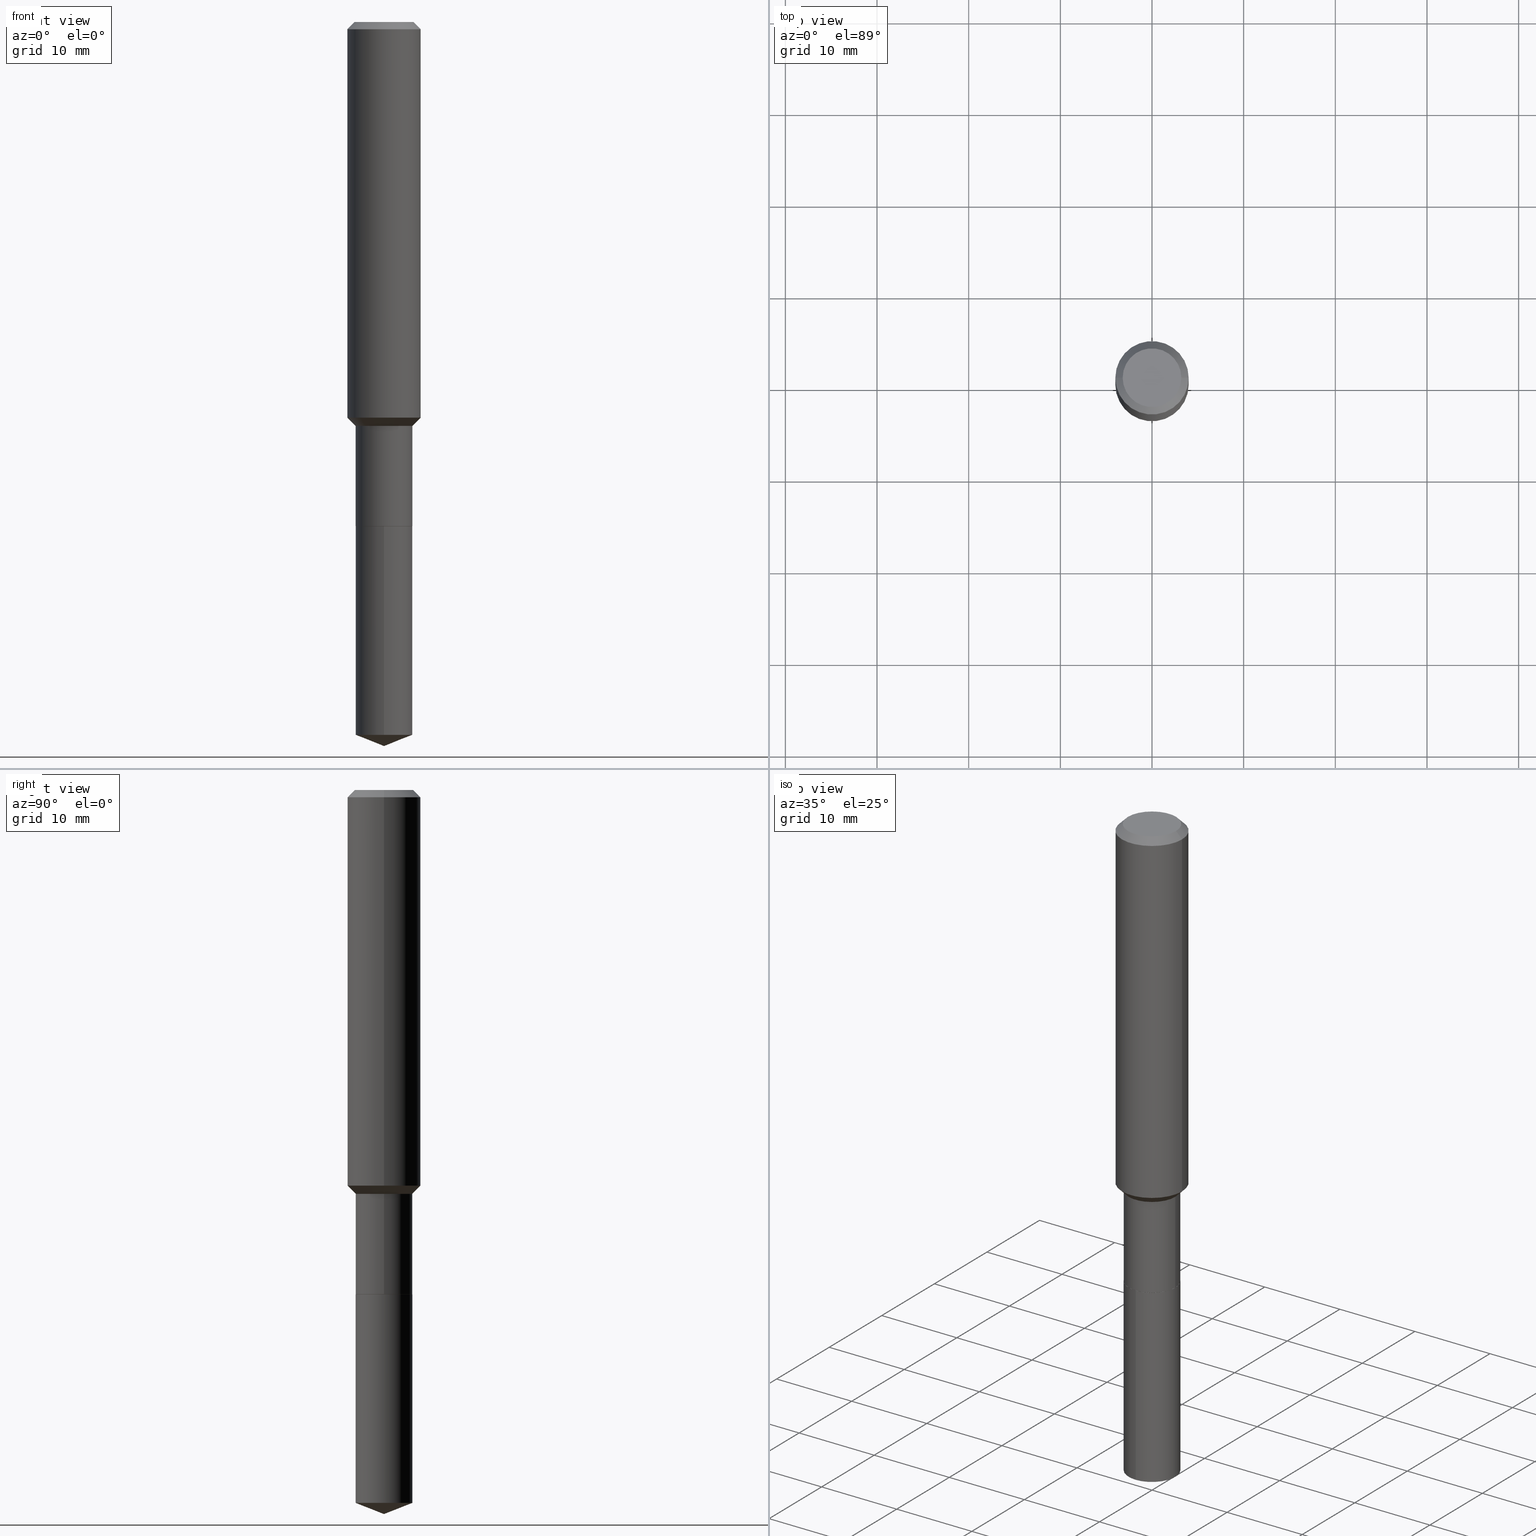
[diagram: canonical four-view strip — front | top / right | iso, engineering-drawing reading convention]
A machine part, canonical four-view strip (front | top / right | iso — engineering-drawing reading convention). The complete STEP part file that produces these views, byte-faithful:
ISO-10303-21;
HEADER;
FILE_DESCRIPTION (( 'STEP AP203' ),
    '1' );
FILE_NAME ('66432.STEP',
    '2024-04-24T22:39:59',
    ( '' ),
    ( '' ),
    'SwSTEP 2.0',
    'SolidWorks 2023',
    '' );
FILE_SCHEMA (( 'CONFIG_CONTROL_DESIGN' ));
ENDSEC;

DATA;
#1 = EDGE_LOOP ( 'NONE', ( #115, #394, #313, #15 ) ) ;
#2 = ORIENTED_EDGE ( 'NONE', *, *, #53, .T. ) ;
#3 = FACE_OUTER_BOUND ( 'NONE', #159, .T. ) ;
#4 = CIRCLE ( 'NONE', #80, 0.1220499999999999780 ) ;
#5 = DATE_AND_TIME ( #352, #487 ) ;
#6 = LINE ( 'NONE', #234, #272 ) ;
#7 = ORIENTED_EDGE ( 'NONE', *, *, #216, .F. ) ;
#8 = DATE_AND_TIME ( #277, #341 ) ;
#9 = DIRECTION ( 'NONE',  ( -2.438088387897960049E-29, 3.491481338843145188E-15, 1.000000000000000000 ) ) ;
#10 = PLANE ( 'NONE',  #392 ) ;
#11 = DIRECTION ( 'NONE',  ( -2.445321399674212677E-29, 3.491692433356646244E-15, 1.000000000000000000 ) ) ;
#12 = AXIS2_PLACEMENT_3D ( 'NONE', #147, #479, #375 ) ;
#13 = EDGE_CURVE ( 'NONE', #233, #73, #265, .T. ) ;
#14 = DIRECTION ( 'NONE',  ( -6.497071151882123780E-15, -0.9304175679820252398, 0.3665012267242951371 ) ) ;
#15 = ORIENTED_EDGE ( 'NONE', *, *, #71, .F. ) ;
#16 = EDGE_LOOP ( 'NONE', ( #489, #339, #203, #355 ) ) ;
#17 = AXIS2_PLACEMENT_3D ( 'NONE', #370, #217, #64 ) ;
#18 = LOCAL_TIME ( 18, 39, 59.00000000000000000, #20 ) ;
#19 = AXIS2_PLACEMENT_3D ( 'NONE', #98, #249, #205 ) ;
#20 = COORDINATED_UNIVERSAL_TIME_OFFSET ( 5, 0, .BEHIND. ) ;
#21 = CARTESIAN_POINT ( 'NONE',  ( 7.703226739483228723E-31, -1.099816621735597661E-16, -0.03150000000000019451 ) ) ;
#22 = EDGE_CURVE ( 'NONE', #347, #308, #248, .T. ) ;
#23 = DIRECTION ( 'NONE',  ( -2.445321399674212677E-29, 3.491692433356646244E-15, 1.000000000000000000 ) ) ;
#24 = CARTESIAN_POINT ( 'NONE',  ( 5.295173606032675561E-29, -7.560104542997063911E-15, -2.165299999999999780 ) ) ;
#25 = CARTESIAN_POINT ( 'NONE',  ( 5.293950871629583880E-29, -7.558358802327641618E-15, -2.164800000000000058 ) ) ;
#26 = PERSON_AND_ORGANIZATION_ROLE ( 'creator' ) ;
#27 = CARTESIAN_POINT ( 'NONE',  ( -0.1260000000000000009, 9.348441284752484904E-16, 3.860086710906114178E-18 ) ) ;
#28 = AXIS2_PLACEMENT_3D ( 'NONE', #469, #56, #126 ) ;
#29 = CALENDAR_DATE ( 2024, 24, 4 ) ;
#30 = FACE_OUTER_BOUND ( 'NONE', #354, .T. ) ;
#31 = COORDINATED_UNIVERSAL_TIME_OFFSET ( 5, 0, .BEHIND. ) ;
#32 = ORIENTED_EDGE ( 'NONE', *, *, #371, .T. ) ;
#33 = AXIS2_PLACEMENT_3D ( 'NONE', #120, #11, #125 ) ;
#34 = VERTEX_POINT ( 'NONE', #114 ) ;
#35 =( GEOMETRIC_REPRESENTATION_CONTEXT ( 3 ) GLOBAL_UNCERTAINTY_ASSIGNED_CONTEXT ( ( #334 ) ) GLOBAL_UNIT_ASSIGNED_CONTEXT ( ( #326, #434, #131 ) ) REPRESENTATION_CONTEXT ( 'NONE', 'WORKASPACE' ) );
#36 = CONICAL_SURFACE ( 'NONE', #438, 0.1575000000000000011, 0.7853981633974449483 ) ;
#37 = EDGE_LOOP ( 'NONE', ( #257, #263, #322, #113 ) ) ;
#38 = ADVANCED_FACE ( 'NONE', ( #424 ), #36, .T. ) ;
#39 = PERSON_AND_ORGANIZATION ( #305, #420 ) ;
#40 = CARTESIAN_POINT ( 'NONE',  ( 7.703226739483228723E-31, -1.099816621735597661E-16, -0.03150000000000019451 ) ) ;
#41 = DESIGN_CONTEXT ( 'detailed design', #279, 'design' ) ;
#42 = VERTEX_POINT ( 'NONE', #191 ) ;
#43 = CIRCLE ( 'NONE', #270, 0.1260000000000000009 ) ;
#44 = ADVANCED_FACE ( 'NONE', ( #77 ), #274, .T. ) ;
#45 = ORIENTED_EDGE ( 'NONE', *, *, #140, .T. ) ;
#46 = LOCAL_TIME ( 18, 39, 59.00000000000000000, #94 ) ;
#47 = VECTOR ( 'NONE', #152, 39.37007874015748143 ) ;
#48 = CARTESIAN_POINT ( 'NONE',  ( 5.295173606032675561E-29, -7.560104542997063911E-15, -2.165299999999999780 ) ) ;
#49 = CARTESIAN_POINT ( 'NONE',  ( 5.295173606032675561E-29, -7.560104542997063911E-15, -2.165299999999999780 ) ) ;
#50 = ORIENTED_EDGE ( 'NONE', *, *, #260, .F. ) ;
#51 =( LENGTH_UNIT ( ) NAMED_UNIT ( * ) SI_UNIT ( $, .METRE. ) );
#52 = DIRECTION ( 'NONE',  ( -6.982962677686265922E-15, -1.000000000000000000, 4.476604659834925490E-15 ) ) ;
#53 = EDGE_CURVE ( 'NONE', #190, #42, #398, .T. ) ;
#54 = CARTESIAN_POINT ( 'NONE',  ( 0.000000000000000000, 0.000000000000000000, 0.000000000000000000 ) ) ;
#55 = CC_DESIGN_PERSON_AND_ORGANIZATION_ASSIGNMENT ( #254, #154, ( #282 ) ) ;
#56 = DIRECTION ( 'NONE',  ( 0.000000000000000000, 0.000000000000000000, 1.000000000000000000 ) ) ;
#57 = ADVANCED_FACE ( 'NONE', ( #357 ), #10, .F. ) ;
#58 = LOCAL_TIME ( 18, 39, 59.00000000000000000, #31 ) ;
#59 = APPROVAL_STATUS ( 'not_yet_approved' ) ;
#60 = DIRECTION ( 'NONE',  ( -2.445468806185136597E-29, 3.491481338843145583E-15, 1.000000000000000000 ) ) ;
#61 = APPROVAL ( #346, 'UNSPECIFIED' ) ;
#62 = AXIS2_PLACEMENT_3D ( 'NONE', #49, #464, #52 ) ;
#63 = CIRCLE ( 'NONE', #247, 0.1215500000000000053 ) ;
#64 = DIRECTION ( 'NONE',  ( 1.000000000000000000, -6.982962677686266711E-15, 0.000000000000000000 ) ) ;
#65 = VECTOR ( 'NONE', #303, 39.37007874015748143 ) ;
#66 = CIRCLE ( 'NONE', #33, 0.1220500000000000057 ) ;
#67 = DIRECTION ( 'NONE',  ( -2.445321399674212677E-29, 3.491692433356646244E-15, 1.000000000000000000 ) ) ;
#68 = DIRECTION ( 'NONE',  ( 1.000000000000000000, -6.982962677686266711E-15, 4.876176775795935793E-29 ) ) ;
#69 = ORIENTED_EDGE ( 'NONE', *, *, #242, .F. ) ;
#70 = CARTESIAN_POINT ( 'NONE',  ( -0.1220499999999999502, -5.940822053615047978E-15, -1.735000000000000098 ) ) ;
#71 = EDGE_CURVE ( 'NONE', #347, #423, #468, .T. ) ;
#72 = DIRECTION ( 'NONE',  ( 0.7071067811866078578, -2.468850131082888544E-15, 0.7071067811864871766 ) ) ;
#73 = VERTEX_POINT ( 'NONE', #359 ) ;
#74 = CALENDAR_DATE ( 2024, 24, 4 ) ;
#75 = VERTEX_POINT ( 'NONE', #124 ) ;
#76 = ORIENTED_EDGE ( 'NONE', *, *, #260, .T. ) ;
#77 = FACE_OUTER_BOUND ( 'NONE', #1, .T. ) ;
#78 = EDGE_CURVE ( 'NONE', #446, #347, #6, .T. ) ;
#79 = DIRECTION ( 'NONE',  ( 0.7071067811865496822, -2.468850131082279149E-15, 0.7071067811865453523 ) ) ;
#80 = AXIS2_PLACEMENT_3D ( 'NONE', #86, #399, #207 ) ;
#81 = ORIENTED_EDGE ( 'NONE', *, *, #378, .F. ) ;
#82 = DIRECTION ( 'NONE',  ( 1.000000000000000000, -6.982962677686266711E-15, 4.876176775795935793E-29 ) ) ;
#83 = ADVANCED_BREP_SHAPE_REPRESENTATION ( '66432', ( #118, #452, #28 ), #35 ) ;
#84 = LINE ( 'NONE', #236, #367 ) ;
#85 = CARTESIAN_POINT ( 'NONE',  ( 7.703226739483228723E-31, -1.099816621735597661E-16, -0.03150000000000019451 ) ) ;
#86 = CARTESIAN_POINT ( 'NONE',  ( 5.293950871629583880E-29, -7.558358802327641618E-15, -2.164800000000000058 ) ) ;
#87 = ORIENTED_EDGE ( 'NONE', *, *, #301, .T. ) ;
#88 = ORIENTED_EDGE ( 'NONE', *, *, #463, .F. ) ;
#89 = DIRECTION ( 'NONE',  ( -2.445468806185136597E-29, 3.491481338843145583E-15, 1.000000000000000000 ) ) ;
#90 = LINE ( 'NONE', #321, #255 ) ;
#91 = MECHANICAL_CONTEXT ( 'NONE', #296, 'mechanical' ) ;
#92 = COORDINATED_UNIVERSAL_TIME_OFFSET ( 5, 0, .BEHIND. ) ;
#93 = EDGE_CURVE ( 'NONE', #156, #116, #90, .T. ) ;
#94 = COORDINATED_UNIVERSAL_TIME_OFFSET ( 5, 0, .BEHIND. ) ;
#95 = DIRECTION ( 'NONE',  ( 1.000000000000000000, -6.982962677686265922E-15, 0.000000000000000000 ) ) ;
#96 = AXIS2_PLACEMENT_3D ( 'NONE', #24, #473, #292 ) ;
#97 = FACE_OUTER_BOUND ( 'NONE', #209, .T. ) ;
#98 = CARTESIAN_POINT ( 'NONE',  ( 4.242888378731212847E-29, -6.057720122892857986E-15, -1.735000000000000098 ) ) ;
#99 = APPROVAL ( #59, 'UNSPECIFIED' ) ;
#100 = CARTESIAN_POINT ( 'NONE',  ( -0.1575000000000001954, -4.814842300608708286E-15, -1.699550000000000116 ) ) ;
#101 = APPROVAL_STATUS ( 'not_yet_approved' ) ;
#102 = CARTESIAN_POINT ( 'NONE',  ( -8.866673825358101725E-28, 1.266088013143874858E-13, 36.25987874015748247 ) ) ;
#103 = PLANE ( 'NONE',  #474 ) ;
#104 = SECURITY_CLASSIFICATION_LEVEL ( 'unclassified' ) ;
#105 = ORIENTED_EDGE ( 'NONE', *, *, #140, .F. ) ;
#106 = CIRCLE ( 'NONE', #232, 0.1220499999999999502 ) ;
#107 = DIRECTION ( 'NONE',  ( 2.445468806185136597E-29, -3.491481338843145583E-15, -1.000000000000000000 ) ) ;
#108 = DIRECTION ( 'NONE',  ( -2.445468806185136597E-29, 3.491481338843145583E-15, 1.000000000000000000 ) ) ;
#109 = PERSON_AND_ORGANIZATION ( #305, #420 ) ;
#110 = EDGE_CURVE ( 'NONE', #264, #423, #430, .T. ) ;
#111 = DIRECTION ( 'NONE',  ( -2.445468806185136877E-29, 3.491481338843145188E-15, 1.000000000000000000 ) ) ;
#112 = DATE_AND_TIME ( #454, #58 ) ;
#113 = ORIENTED_EDGE ( 'NONE', *, *, #343, .F. ) ;
#114 = CARTESIAN_POINT ( 'NONE',  ( -8.522705948115558556E-16, -0.1220500000000075691, -2.165299999999999336 ) ) ;
#115 = ORIENTED_EDGE ( 'NONE', *, *, #22, .T. ) ;
#116 = VERTEX_POINT ( 'NONE', #162 ) ;
#117 = FACE_OUTER_BOUND ( 'NONE', #417, .T. ) ;
#118 = MANIFOLD_SOLID_BREP ( 'Body-Move/Copy2[1]', #488 ) ;
#119 = DIRECTION ( 'NONE',  ( -2.445468806185136597E-29, 3.491481338843145583E-15, 1.000000000000000000 ) ) ;
#120 = CARTESIAN_POINT ( 'NONE',  ( 5.295173606032675561E-29, -7.560104542997063911E-15, -2.165299999999999780 ) ) ;
#121 = AXIS2_PLACEMENT_3D ( 'NONE', #432, #239, #130 ) ;
#122 = ORIENTED_EDGE ( 'NONE', *, *, #284, .F. ) ;
#123 = CARTESIAN_POINT ( 'NONE',  ( 5.295173606032675561E-29, -7.560104542997063911E-15, -2.165299999999999780 ) ) ;
#124 = CARTESIAN_POINT ( 'NONE',  ( -0.1220500000000000057, -5.940822053615047978E-15, -2.164800000000000058 ) ) ;
#125 = DIRECTION ( 'NONE',  ( -6.982962677686265922E-15, -1.000000000000000000, 4.476604659834925490E-15 ) ) ;
#126 = DIRECTION ( 'NONE',  ( 1.000000000000000000, 0.000000000000000000, 0.000000000000000000 ) ) ;
#127 = EDGE_CURVE ( 'NONE', #423, #42, #449, .T. ) ;
#128 = VERTEX_POINT ( 'NONE', #165 ) ;
#129 = CYLINDRICAL_SURFACE ( 'NONE', #121, 0.1220500000000000057 ) ;
#130 = DIRECTION ( 'NONE',  ( -6.982962677686265922E-15, -1.000000000000000000, 4.476604659834925490E-15 ) ) ;
#131 =( NAMED_UNIT ( * ) SI_UNIT ( $, .STERADIAN. ) SOLID_ANGLE_UNIT ( ) );
#132 = AXIS2_PLACEMENT_3D ( 'NONE', #482, #23, #139 ) ;
#133 = CARTESIAN_POINT ( 'NONE',  ( 0.000000000000000000, 0.000000000000000000, 0.000000000000000000 ) ) ;
#134 = LINE ( 'NONE', #476, #47 ) ;
#135 = AXIS2_PLACEMENT_3D ( 'NONE', #48, #405, #365 ) ;
#136 = ADVANCED_FACE ( 'NONE', ( #472 ), #129, .T. ) ;
#137 = CARTESIAN_POINT ( 'NONE',  ( -9.439721640706201686E-47, 1.347742071746726764E-32, 3.860086710912459732E-18 ) ) ;
#138 = FACE_OUTER_BOUND ( 'NONE', #238, .T. ) ;
#139 = DIRECTION ( 'NONE',  ( -6.982962677686265922E-15, -1.000000000000000000, 4.476604659834925490E-15 ) ) ;
#140 = EDGE_CURVE ( 'NONE', #156, #233, #230, .T. ) ;
#141 = LINE ( 'NONE', #295, #164 ) ;
#142 = PERSON_AND_ORGANIZATION ( #305, #420 ) ;
#143 = CARTESIAN_POINT ( 'NONE',  ( 8.672174089952771606E-16, 0.1220499999999893059, -3.062123226451197500 ) ) ;
#144 = EDGE_CURVE ( 'NONE', #34, #73, #300, .T. ) ;
#145 = CARTESIAN_POINT ( 'NONE',  ( 8.672174089952550725E-16, 0.1220499999999924423, -2.165300000000000669 ) ) ;
#146 = CYLINDRICAL_SURFACE ( 'NONE', #221, 0.1575000000000000844 ) ;
#147 = CARTESIAN_POINT ( 'NONE',  ( 5.295173606032675561E-29, -7.560104542997063911E-15, -2.165299999999999780 ) ) ;
#148 = CIRCLE ( 'NONE', #96, 0.1215500000000000053 ) ;
#149 = ADVANCED_FACE ( 'NONE', ( #202 ), #340, .T. ) ;
#150 = EDGE_LOOP ( 'NONE', ( #363, #461, #226, #50 ) ) ;
#151 = CIRCLE ( 'NONE', #132, 0.1220500000000000057 ) ;
#152 = DIRECTION ( 'NONE',  ( -2.445321399674212397E-29, 3.491692433356646639E-15, 1.000000000000000000 ) ) ;
#153 = ORIENTED_EDGE ( 'NONE', *, *, #110, .T. ) ;
#154 = PERSON_AND_ORGANIZATION_ROLE ( 'classification_officer' ) ;
#155 = ORIENTED_EDGE ( 'NONE', *, *, #276, .F. ) ;
#156 = VERTEX_POINT ( 'NONE', #409 ) ;
#157 = DIRECTION ( 'NONE',  ( 2.445468806185136597E-29, -3.491481338843145583E-15, -1.000000000000000000 ) ) ;
#158 = ORIENTED_EDGE ( 'NONE', *, *, #127, .T. ) ;
#159 = EDGE_LOOP ( 'NONE', ( #466, #200, #2, #429 ) ) ;
#160 = DIRECTION ( 'NONE',  ( -2.445468806185136597E-29, 3.491481338843145583E-15, 1.000000000000000000 ) ) ;
#161 = APPROVAL_ROLE ( '' ) ;
#162 = CARTESIAN_POINT ( 'NONE',  ( -8.522705948115337675E-16, -0.1220500000000106916, -3.062123226451196611 ) ) ;
#163 = EDGE_CURVE ( 'NONE', #75, #348, #141, .T. ) ;
#164 = VECTOR ( 'NONE', #440, 39.37007874015748143 ) ;
#165 = CARTESIAN_POINT ( 'NONE',  ( -0.1215500000000000053, -6.693790620506550601E-15, -2.165299999999999780 ) ) ;
#166 = ORIENTED_EDGE ( 'NONE', *, *, #397, .F. ) ;
#167 = CARTESIAN_POINT ( 'NONE',  ( 0.1220499999999999502, -6.909990717704466794E-15, -1.735000000000000098 ) ) ;
#168 = CARTESIAN_POINT ( 'NONE',  ( -9.439721640706201686E-47, 1.347742071746726764E-32, 3.860086710912459732E-18 ) ) ;
#169 = PERSON_AND_ORGANIZATION ( #305, #420 ) ;
#170 = CARTESIAN_POINT ( 'NONE',  ( 0.1575000000000000011, -1.190510096822576026E-15, -0.03150000000000019451 ) ) ;
#171 = EDGE_LOOP ( 'NONE', ( #87, #377, #227, #422 ) ) ;
#172 = DIRECTION ( 'NONE',  ( -2.445468806185136877E-29, 3.491481338843145188E-15, 1.000000000000000000 ) ) ;
#173 = PRODUCT_DEFINITION ( 'UNKNOWN', '', #407, #41 ) ;
#174 = CONICAL_SURFACE ( 'NONE', #19, 0.1220499999999999502, 0.7853981633974513876 ) ;
#175 = CC_DESIGN_SECURITY_CLASSIFICATION ( #282, ( #407 ) ) ;
#176 = CIRCLE ( 'NONE', #253, 0.1575000000000001954 ) ;
#177 = CARTESIAN_POINT ( 'NONE',  ( -0.1215500000000000053, -6.696439847680661802E-15, -2.165299999999999780 ) ) ;
#178 = PERSON_AND_ORGANIZATION ( #305, #420 ) ;
#179 = CC_DESIGN_APPROVAL ( #485, ( #173 ) ) ;
#180 = DIRECTION ( 'NONE',  ( -1.000000000000000000, 6.982962677686265922E-15, -4.876176775795935793E-29 ) ) ;
#181 = PERSON_AND_ORGANIZATION_ROLE ( 'design_supplier' ) ;
#182 = DIMENSIONAL_EXPONENTS ( 1.000000000000000000, 0.000000000000000000, 0.000000000000000000, 0.000000000000000000, 0.000000000000000000, 0.000000000000000000, 0.000000000000000000 ) ;
#183 = EDGE_CURVE ( 'NONE', #348, #308, #456, .T. ) ;
#184 = ORIENTED_EDGE ( 'NONE', *, *, #144, .T. ) ;
#185 = EDGE_LOOP ( 'NONE', ( #228, #336, #302, #345 ) ) ;
#186 = CONICAL_SURFACE ( 'NONE', #135, 0.1215500000000000053, 0.7853981633975336552 ) ;
#187 = ORIENTED_EDGE ( 'NONE', *, *, #183, .F. ) ;
#188 = PRODUCT ( '66432', '66432', '', ( #91 ) ) ;
#189 = ADVANCED_FACE ( 'NONE', ( #30 ), #414, .F. ) ;
#190 = VERTEX_POINT ( 'NONE', #27 ) ;
#191 = CARTESIAN_POINT ( 'NONE',  ( -0.1575000000000000011, -1.902859576980055070E-15, -0.03150000000000019451 ) ) ;
#192 = ORIENTED_EDGE ( 'NONE', *, *, #284, .T. ) ;
#193 = DIRECTION ( 'NONE',  ( 1.000000000000000000, -6.982962677686265922E-15, 4.876281427513067258E-29 ) ) ;
#194 = AXIS2_PLACEMENT_3D ( 'NONE', #102, #218, #465 ) ;
#195 = COORDINATED_UNIVERSAL_TIME_OFFSET ( 5, 0, .BEHIND. ) ;
#196 = VECTOR ( 'NONE', #237, 39.37007874015748143 ) ;
#197 = ORIENTED_EDGE ( 'NONE', *, *, #53, .F. ) ;
#198 = CC_DESIGN_PERSON_AND_ORGANIZATION_ASSIGNMENT ( #178, #442, ( #188 ) ) ;
#199 = CARTESIAN_POINT ( 'NONE',  ( 5.295173606032675561E-29, -7.560104542997063911E-15, -2.165299999999999780 ) ) ;
#200 = ORIENTED_EDGE ( 'NONE', *, *, #371, .F. ) ;
#201 = ADVANCED_FACE ( 'NONE', ( #299 ), #481, .T. ) ;
#202 = FACE_OUTER_BOUND ( 'NONE', #307, .T. ) ;
#203 = ORIENTED_EDGE ( 'NONE', *, *, #22, .F. ) ;
#204 = CARTESIAN_POINT ( 'NONE',  ( 4.242888378731212847E-29, -6.057720122892857986E-15, -1.735000000000000098 ) ) ;
#205 = DIRECTION ( 'NONE',  ( 1.000000000000000000, -6.982962677686266711E-15, 0.000000000000000000 ) ) ;
#206 = CARTESIAN_POINT ( 'NONE',  ( 0.1575000000000000844, -1.099816621735587677E-15, 7.679978421878603638E-30 ) ) ;
#207 = DIRECTION ( 'NONE',  ( 1.000000000000000000, -6.982962677686265133E-15, 0.000000000000000000 ) ) ;
#208 = AXIS2_PLACEMENT_3D ( 'NONE', #403, #314, #213 ) ;
#209 = EDGE_LOOP ( 'NONE', ( #187, #396, #259, #269 ) ) ;
#210 = AXIS2_PLACEMENT_3D ( 'NONE', #54, #119, #268 ) ;
#211 = EDGE_LOOP ( 'NONE', ( #319, #45, #122 ) ) ;
#212 = EDGE_CURVE ( 'NONE', #390, #431, #379, .T. ) ;
#213 = DIRECTION ( 'NONE',  ( 1.000000000000000000, -6.982962677686266711E-15, 0.000000000000000000 ) ) ;
#214 = VECTOR ( 'NONE', #72, 39.37007874015748143 ) ;
#215 = CC_DESIGN_PERSON_AND_ORGANIZATION_ASSIGNMENT ( #408, #181, ( #407 ) ) ;
#216 = EDGE_CURVE ( 'NONE', #128, #75, #362, .T. ) ;
#217 = DIRECTION ( 'NONE',  ( -2.445468806185136597E-29, 3.491481338843145583E-15, 1.000000000000000000 ) ) ;
#218 = DIRECTION ( 'NONE',  ( -2.445321399674212677E-29, 3.491692433356646244E-15, 1.000000000000000000 ) ) ;
#219 = DATE_AND_TIME ( #29, #46 ) ;
#220 = DIRECTION ( 'NONE',  ( 1.000000000000000000, -6.982962677686265133E-15, 0.000000000000000000 ) ) ;
#221 = AXIS2_PLACEMENT_3D ( 'NONE', #450, #470, #433 ) ;
#222 = ADVANCED_FACE ( 'NONE', ( #293 ), #103, .F. ) ;
#223 = ORIENTED_EDGE ( 'NONE', *, *, #415, .F. ) ;
#224 = APPROVAL_DATE_TIME ( #112, #61 ) ;
#225 = DATE_AND_TIME ( #74, #18 ) ;
#226 = ORIENTED_EDGE ( 'NONE', *, *, #378, .T. ) ;
#227 = ORIENTED_EDGE ( 'NONE', *, *, #460, .F. ) ;
#228 = ORIENTED_EDGE ( 'NONE', *, *, #397, .T. ) ;
#229 = CIRCLE ( 'NONE', #208, 0.1220499999999999502 ) ;
#230 = LINE ( 'NONE', #315, #411 ) ;
#231 = AXIS2_PLACEMENT_3D ( 'NONE', #85, #471, #395 ) ;
#232 = AXIS2_PLACEMENT_3D ( 'NONE', #204, #273, #240 ) ;
#233 = VERTEX_POINT ( 'NONE', #143 ) ;
#234 = CARTESIAN_POINT ( 'NONE',  ( 0.1220499999999999502, -6.909990717704466794E-15, -1.735000000000000098 ) ) ;
#235 = LENGTH_MEASURE_WITH_UNIT ( LENGTH_MEASURE( 0.02539999999999999897 ), #51 );
#236 = CARTESIAN_POINT ( 'NONE',  ( -0.1575000000000000844, 1.119104808822158392E-15, -7.747322767151481189E-30 ) ) ;
#237 = DIRECTION ( 'NONE',  ( -0.7071067811865451302, 2.468850131082231817E-15, -0.7071067811865499042 ) ) ;
#238 = EDGE_LOOP ( 'NONE', ( #105, #490, #69 ) ) ;
#239 = DIRECTION ( 'NONE',  ( -2.445321399674212677E-29, 3.491692433356646244E-15, 1.000000000000000000 ) ) ;
#240 = DIRECTION ( 'NONE',  ( 1.000000000000000000, -6.982962677686266711E-15, 0.000000000000000000 ) ) ;
#241 = DIRECTION ( 'NONE',  ( 6.611014441532073689E-15, 0.9304175679820279043, 0.3665012267242886423 ) ) ;
#242 = EDGE_CURVE ( 'NONE', #233, #116, #297, .T. ) ;
#243 = DIRECTION ( 'NONE',  ( 1.000000000000000000, -6.982962677686265922E-15, 4.876281427513067258E-29 ) ) ;
#244 = APPROVAL_DATE_TIME ( #219, #99 ) ;
#245 = AXIS2_PLACEMENT_3D ( 'NONE', #381, #435, #369 ) ;
#246 = ADVANCED_FACE ( 'NONE', ( #337 ), #290, .T. ) ;
#247 = AXIS2_PLACEMENT_3D ( 'NONE', #123, #325, #317 ) ;
#248 = CIRCLE ( 'NONE', #412, 0.1575000000000001954 ) ;
#249 = DIRECTION ( 'NONE',  ( -2.445468806185136597E-29, 3.491481338843145583E-15, 1.000000000000000000 ) ) ;
#250 = DIRECTION ( 'NONE',  ( -0.7071067811866078578, 7.493145998870571886E-15, 0.7071067811864871766 ) ) ;
#251 = CARTESIAN_POINT ( 'NONE',  ( 4.156196509551949590E-29, -5.933947109430868256E-15, -1.699550000000000116 ) ) ;
#252 = FACE_OUTER_BOUND ( 'NONE', #459, .T. ) ;
#253 = AXIS2_PLACEMENT_3D ( 'NONE', #251, #60, #333 ) ;
#254 = PERSON_AND_ORGANIZATION ( #305, #420 ) ;
#255 = VECTOR ( 'NONE', #14, 39.37007874015748854 ) ;
#256 = VECTOR ( 'NONE', #111, 39.37007874015748143 ) ;
#257 = ORIENTED_EDGE ( 'NONE', *, *, #477, .F. ) ;
#258 = PERSON_AND_ORGANIZATION_ROLE ( 'creator' ) ;
#259 = ORIENTED_EDGE ( 'NONE', *, *, #78, .T. ) ;
#260 = EDGE_CURVE ( 'NONE', #73, #34, #66, .T. ) ;
#261 = PRODUCT_DEFINITION_SHAPE ( 'NONE', 'NONE',  #173 ) ;
#262 = EDGE_LOOP ( 'NONE', ( #223, #153, #158, #197 ) ) ;
#263 = ORIENTED_EDGE ( 'NONE', *, *, #310, .T. ) ;
#264 = VERTEX_POINT ( 'NONE', #275 ) ;
#265 = LINE ( 'NONE', #145, #65 ) ;
#266 = ORIENTED_EDGE ( 'NONE', *, *, #364, .T. ) ;
#267 = CARTESIAN_POINT ( 'NONE',  ( 0.1220499999999999780, -8.410629397139250426E-15, -2.164800000000000058 ) ) ;
#268 = DIRECTION ( 'NONE',  ( 1.000000000000000000, -6.982962677686267499E-15, 4.876176775795936353E-29 ) ) ;
#269 = ORIENTED_EDGE ( 'NONE', *, *, #310, .F. ) ;
#270 = AXIS2_PLACEMENT_3D ( 'NONE', #168, #285, #193 ) ;
#271 = CC_DESIGN_APPROVAL ( #99, ( #407 ) ) ;
#272 = VECTOR ( 'NONE', #79, 39.37007874015748143 ) ;
#273 = DIRECTION ( 'NONE',  ( -2.445468806185136597E-29, 3.491481338843145583E-15, 1.000000000000000000 ) ) ;
#274 = CYLINDRICAL_SURFACE ( 'NONE', #210, 0.1575000000000000844 ) ;
#275 = CARTESIAN_POINT ( 'NONE',  ( 0.1260000000000000009, -1.027466422270894443E-15, 3.860086710919128072E-18 ) ) ;
#276 = EDGE_CURVE ( 'NONE', #75, #431, #4, .T. ) ;
#277 = CALENDAR_DATE ( 2024, 24, 4 ) ;
#278 = DIRECTION ( 'NONE',  ( 0.7071067811865451302, -7.319954787623248157E-15, -0.7071067811865499042 ) ) ;
#279 = APPLICATION_CONTEXT ( 'configuration controlled 3d designs of mechanical parts and assemblies' ) ;
#280 = CIRCLE ( 'NONE', #350, 0.1220499999999999780 ) ;
#281 = DIRECTION ( 'NONE',  ( -2.445468806185136877E-29, 3.491481338843145188E-15, 1.000000000000000000 ) ) ;
#282 = SECURITY_CLASSIFICATION ( '', '', #104 ) ;
#283 = AXIS2_PLACEMENT_3D ( 'NONE', #451, #108, #68 ) ;
#284 = EDGE_CURVE ( 'NONE', #116, #233, #151, .T. ) ;
#285 = DIRECTION ( 'NONE',  ( -2.445468806185136597E-29, 3.491481338843145583E-15, 1.000000000000000000 ) ) ;
#286 = APPLICATION_PROTOCOL_DEFINITION ( 'international standard', 'config_control_design', 1994, #279 ) ;
#287 = ADVANCED_FACE ( 'NONE', ( #252 ), #437, .T. ) ;
#288 = LINE ( 'NONE', #330, #256 ) ;
#289 = DIRECTION ( 'NONE',  ( -6.982962677686265922E-15, -1.000000000000000000, 4.476604659834925490E-15 ) ) ;
#290 = CONICAL_SURFACE ( 'NONE', #194, 99.94676754584057221, 1.195550537616121511 ) ;
#291 = DIRECTION ( 'NONE',  ( -6.982962677686265922E-15, -1.000000000000000000, 4.476604659834925490E-15 ) ) ;
#292 = DIRECTION ( 'NONE',  ( 1.000000000000000000, -6.982962677686266711E-15, 0.000000000000000000 ) ) ;
#293 = FACE_OUTER_BOUND ( 'NONE', #402, .T. ) ;
#294 = ADVANCED_FACE ( 'NONE', ( #97 ), #406, .T. ) ;
#295 = CARTESIAN_POINT ( 'NONE',  ( -0.1220499999999999641, 8.672174089952020216E-16, -6.003560277656110794E-30 ) ) ;
#296 = APPLICATION_CONTEXT ( 'configuration controlled 3d designs of mechanical parts and assemblies' ) ;
#297 = CIRCLE ( 'NONE', #391, 0.1220500000000000057 ) ;
#298 = DIRECTION ( 'NONE',  ( 2.438088387897960049E-29, -3.491481338843145188E-15, -1.000000000000000000 ) ) ;
#299 = FACE_OUTER_BOUND ( 'NONE', #171, .T. ) ;
#300 = CIRCLE ( 'NONE', #62, 0.1220500000000000057 ) ;
#301 = EDGE_CURVE ( 'NONE', #431, #75, #280, .T. ) ;
#302 = ORIENTED_EDGE ( 'NONE', *, *, #301, .F. ) ;
#303 = DIRECTION ( 'NONE',  ( -2.445321399674212397E-29, 3.491692433356646639E-15, 1.000000000000000000 ) ) ;
#304 = DIRECTION ( 'NONE',  ( -1.000000000000000000, 6.982962677686265922E-15, 0.000000000000000000 ) ) ;
#305 = PERSON ( 'UNSPECIFIED', 'UNSPECIFIED', 'UNSPECIFIED', ('UNSPECIFIED'), ('UNSPECIFIED'), ('UNSPECIFIED') ) ;
#306 = CLOSED_SHELL ( 'NONE', ( #320, #38, #44, #404, #201, #447, #294, #444, #428, #222, #57, #149 ) ) ;
#307 = EDGE_LOOP ( 'NONE', ( #7, #384, #380, #155 ) ) ;
#308 = VERTEX_POINT ( 'NONE', #100 ) ;
#309 = CARTESIAN_POINT ( 'NONE',  ( 7.703226739483228723E-31, -1.099816621735597661E-16, -0.03150000000000019451 ) ) ;
#310 = EDGE_CURVE ( 'NONE', #308, #347, #176, .T. ) ;
#311 = CC_DESIGN_DATE_AND_TIME_ASSIGNMENT ( #225, #385, ( #282 ) ) ;
#312 = DIRECTION ( 'NONE',  ( 1.000000000000000000, -6.982962677686266711E-15, 0.000000000000000000 ) ) ;
#313 = ORIENTED_EDGE ( 'NONE', *, *, #127, .F. ) ;
#314 = DIRECTION ( 'NONE',  ( -2.445468806185136597E-29, 3.491481338843145583E-15, 1.000000000000000000 ) ) ;
#315 = CARTESIAN_POINT ( 'NONE',  ( 7.606082573554659811E-29, -1.085894764032567561E-14, -3.110199999999999854 ) ) ;
#316 = ORIENTED_EDGE ( 'NONE', *, *, #415, .T. ) ;
#317 = DIRECTION ( 'NONE',  ( 1.000000000000000000, -6.982962677686266711E-15, 0.000000000000000000 ) ) ;
#318 = CONICAL_SURFACE ( 'NONE', #245, 99.94676754584057221, 1.195550537616121511 ) ;
#319 = ORIENTED_EDGE ( 'NONE', *, *, #93, .F. ) ;
#320 = ADVANCED_FACE ( 'NONE', ( #410 ), #186, .T. ) ;
#321 = CARTESIAN_POINT ( 'NONE',  ( 7.605438617266735127E-29, -1.085986180622584034E-14, -3.110199999999999854 ) ) ;
#322 = ORIENTED_EDGE ( 'NONE', *, *, #71, .T. ) ;
#323 = CYLINDRICAL_SURFACE ( 'NONE', #445, 0.1220499999999999641 ) ;
#324 = CARTESIAN_POINT ( 'NONE',  ( 5.295173606032675561E-29, -7.560104542997063911E-15, -2.165299999999999780 ) ) ;
#325 = DIRECTION ( 'NONE',  ( -2.445468806185136597E-29, 3.491481338843145583E-15, 1.000000000000000000 ) ) ;
#326 =( CONVERSION_BASED_UNIT ( 'INCH', #235 ) LENGTH_UNIT ( ) NAMED_UNIT ( #182 ) );
#327 = APPROVAL_PERSON_ORGANIZATION ( #39, #61, #376 ) ;
#328 = VECTOR ( 'NONE', #278, 39.37007874015748143 ) ;
#329 = AXIS2_PLACEMENT_3D ( 'NONE', #309, #107, #356 ) ;
#330 = CARTESIAN_POINT ( 'NONE',  ( 0.1220499999999999641, -8.522705948116086106E-16, 5.951373754858937892E-30 ) ) ;
#331 = CARTESIAN_POINT ( 'NONE',  ( 0.1575000000000001954, -7.033763731166457314E-15, -1.699550000000000116 ) ) ;
#332 = PRODUCT_RELATED_PRODUCT_CATEGORY ( 'detail', '', ( #188 ) ) ;
#333 = DIRECTION ( 'NONE',  ( 1.000000000000000000, -6.982962677686265922E-15, 0.000000000000000000 ) ) ;
#334 = UNCERTAINTY_MEASURE_WITH_UNIT (LENGTH_MEASURE( 1.000000000000000082E-05 ), #326, 'distance_accuracy_value', 'NONE');
#335 = CC_DESIGN_PERSON_AND_ORGANIZATION_ASSIGNMENT ( #109, #258, ( #173 ) ) ;
#336 = ORIENTED_EDGE ( 'NONE', *, *, #216, .T. ) ;
#337 = FACE_OUTER_BOUND ( 'NONE', #211, .T. ) ;
#338 = DIRECTION ( 'NONE',  ( -2.445468806185136597E-29, 3.491481338843145583E-15, 1.000000000000000000 ) ) ;
#339 = ORIENTED_EDGE ( 'NONE', *, *, #183, .T. ) ;
#340 = CONICAL_SURFACE ( 'NONE', #368, 0.1215500000000000053, 0.7853981633975336552 ) ;
#341 = LOCAL_TIME ( 18, 39, 59.00000000000000000, #92 ) ;
#342 = CARTESIAN_POINT ( 'NONE',  ( 0.1215500000000000053, -8.408883656469829712E-15, -2.165299999999999780 ) ) ;
#343 = EDGE_CURVE ( 'NONE', #42, #423, #366, .T. ) ;
#344 = ORIENTED_EDGE ( 'NONE', *, *, #13, .T. ) ;
#345 = ORIENTED_EDGE ( 'NONE', *, *, #212, .F. ) ;
#346 = APPROVAL_STATUS ( 'not_yet_approved' ) ;
#347 = VERTEX_POINT ( 'NONE', #331 ) ;
#348 = VERTEX_POINT ( 'NONE', #70 ) ;
#349 = CARTESIAN_POINT ( 'NONE',  ( 0.1575000000000000011, -1.209798283909146741E-15, -0.03150000000000019451 ) ) ;
#350 = AXIS2_PLACEMENT_3D ( 'NONE', #25, #441, #220 ) ;
#351 = APPROVAL_PERSON_ORGANIZATION ( #142, #485, #383 ) ;
#352 = CALENDAR_DATE ( 2024, 24, 4 ) ;
#353 = VECTOR ( 'NONE', #250, 39.37007874015748143 ) ;
#354 = EDGE_LOOP ( 'NONE', ( #184, #76 ) ) ;
#355 = ORIENTED_EDGE ( 'NONE', *, *, #78, .F. ) ;
#356 = DIRECTION ( 'NONE',  ( -1.000000000000000000, 6.982962677686265922E-15, 0.000000000000000000 ) ) ;
#357 = FACE_OUTER_BOUND ( 'NONE', #382, .T. ) ;
#358 = CC_DESIGN_DATE_AND_TIME_ASSIGNMENT ( #8, #462, ( #173 ) ) ;
#359 = CARTESIAN_POINT ( 'NONE',  ( 8.672174089952769634E-16, 0.1220499999999924146, -2.165300000000000669 ) ) ;
#360 = VECTOR ( 'NONE', #281, 39.37007874015748143 ) ;
#361 = APPLICATION_PROTOCOL_DEFINITION ( 'international standard', 'config_control_design', 1994, #296 ) ;
#362 = LINE ( 'NONE', #177, #353 ) ;
#363 = ORIENTED_EDGE ( 'NONE', *, *, #13, .F. ) ;
#364 = EDGE_CURVE ( 'NONE', #431, #446, #288, .T. ) ;
#365 = DIRECTION ( 'NONE',  ( 1.000000000000000000, -6.982962677686266711E-15, 0.000000000000000000 ) ) ;
#366 = CIRCLE ( 'NONE', #467, 0.1575000000000000011 ) ;
#367 = VECTOR ( 'NONE', #172, 39.37007874015748143 ) ;
#368 = AXIS2_PLACEMENT_3D ( 'NONE', #199, #160, #312 ) ;
#369 = DIRECTION ( 'NONE',  ( -6.982962677686265922E-15, -1.000000000000000000, 3.498627837349983318E-15 ) ) ;
#370 = CARTESIAN_POINT ( 'NONE',  ( 4.242888378731212847E-29, -6.057720122892857986E-15, -1.735000000000000098 ) ) ;
#371 = EDGE_CURVE ( 'NONE', #190, #264, #486, .T. ) ;
#372 = PERSON_AND_ORGANIZATION ( #305, #420 ) ;
#373 = CARTESIAN_POINT ( 'NONE',  ( 5.295173606032675561E-29, -7.560104542997063911E-15, -2.165299999999999780 ) ) ;
#374 = CARTESIAN_POINT ( 'NONE',  ( -4.719860820353100843E-47, 6.738710358733633822E-33, 1.930043355456229866E-18 ) ) ;
#375 = DIRECTION ( 'NONE',  ( 6.982962677686265922E-15, 1.000000000000000000, -3.491692433356646639E-15 ) ) ;
#376 = APPROVAL_ROLE ( '' ) ;
#377 = ORIENTED_EDGE ( 'NONE', *, *, #163, .T. ) ;
#378 = EDGE_CURVE ( 'NONE', #116, #34, #134, .T. ) ;
#379 = LINE ( 'NONE', #342, #214 ) ;
#380 = ORIENTED_EDGE ( 'NONE', *, *, #212, .T. ) ;
#381 = CARTESIAN_POINT ( 'NONE',  ( -8.866673825358101725E-28, 1.266088013143874858E-13, 36.25987874015748247 ) ) ;
#382 = EDGE_LOOP ( 'NONE', ( #166, #419 ) ) ;
#383 = APPROVAL_ROLE ( '' ) ;
#384 = ORIENTED_EDGE ( 'NONE', *, *, #484, .T. ) ;
#385 = DATE_TIME_ROLE ( 'classification_date' ) ;
#386 = CARTESIAN_POINT ( 'NONE',  ( 4.156196509551949590E-29, -5.933947109430868256E-15, -1.699550000000000116 ) ) ;
#387 = ADVANCED_FACE ( 'NONE', ( #138 ), #318, .T. ) ;
#388 = ORIENTED_EDGE ( 'NONE', *, *, #144, .F. ) ;
#389 = DIRECTION ( 'NONE',  ( -2.445468806185136597E-29, 3.491481338843145583E-15, 1.000000000000000000 ) ) ;
#390 = VERTEX_POINT ( 'NONE', #416 ) ;
#391 = AXIS2_PLACEMENT_3D ( 'NONE', #401, #483, #291 ) ;
#392 = AXIS2_PLACEMENT_3D ( 'NONE', #324, #9, #426 ) ;
#393 = AXIS2_PLACEMENT_3D ( 'NONE', #373, #67, #289 ) ;
#394 = ORIENTED_EDGE ( 'NONE', *, *, #477, .T. ) ;
#395 = DIRECTION ( 'NONE',  ( 1.000000000000000000, -6.982962677686265922E-15, 0.000000000000000000 ) ) ;
#396 = ORIENTED_EDGE ( 'NONE', *, *, #463, .T. ) ;
#397 = EDGE_CURVE ( 'NONE', #390, #128, #148, .T. ) ;
#398 = LINE ( 'NONE', #400, #196 ) ;
#399 = DIRECTION ( 'NONE',  ( -2.445468806185136597E-29, 3.491481338843145583E-15, 1.000000000000000000 ) ) ;
#400 = CARTESIAN_POINT ( 'NONE',  ( -0.1575000000000000011, 9.898349595620272334E-16, -0.03150000000000019451 ) ) ;
#401 = CARTESIAN_POINT ( 'NONE',  ( 7.488194633398660145E-29, -1.069153541685520385E-14, -3.062123226451197056 ) ) ;
#402 = EDGE_LOOP ( 'NONE', ( #32, #316 ) ) ;
#403 = CARTESIAN_POINT ( 'NONE',  ( 4.242888378731212847E-29, -6.057720122892857986E-15, -1.735000000000000098 ) ) ;
#404 = ADVANCED_FACE ( 'NONE', ( #439 ), #174, .T. ) ;
#405 = DIRECTION ( 'NONE',  ( -2.445468806185136597E-29, 3.491481338843145583E-15, 1.000000000000000000 ) ) ;
#406 = CONICAL_SURFACE ( 'NONE', #17, 0.1220499999999999502, 0.7853981633974513876 ) ;
#407 = PRODUCT_DEFINITION_FORMATION_WITH_SPECIFIED_SOURCE ( 'ANY', '', #188, .NOT_KNOWN. ) ;
#408 = PERSON_AND_ORGANIZATION ( #305, #420 ) ;
#409 = CARTESIAN_POINT ( 'NONE',  ( 7.605438617266735127E-29, -1.085986180622584192E-14, -3.110199999999999854 ) ) ;
#410 = FACE_OUTER_BOUND ( 'NONE', #185, .T. ) ;
#411 = VECTOR ( 'NONE', #241, 39.37007874015748143 ) ;
#412 = AXIS2_PLACEMENT_3D ( 'NONE', #386, #389, #457 ) ;
#413 = AXIS2_PLACEMENT_3D ( 'NONE', #137, #478, #243 ) ;
#414 = PLANE ( 'NONE',  #12 ) ;
#415 = EDGE_CURVE ( 'NONE', #264, #190, #43, .T. ) ;
#416 = CARTESIAN_POINT ( 'NONE',  ( 0.1215500000000000053, -8.408883656469829712E-15, -2.165299999999999780 ) ) ;
#417 = EDGE_LOOP ( 'NONE', ( #455, #427, #266, #88 ) ) ;
#418 = CARTESIAN_POINT ( 'NONE',  ( -0.1220499999999999502, -5.190502713897655767E-15, -1.735000000000000098 ) ) ;
#419 = ORIENTED_EDGE ( 'NONE', *, *, #484, .F. ) ;
#420 = ORGANIZATION ( 'UNSPECIFIED', 'UNSPECIFIED', '' ) ;
#421 = CC_DESIGN_PERSON_AND_ORGANIZATION_ASSIGNMENT ( #372, #26, ( #407 ) ) ;
#422 = ORIENTED_EDGE ( 'NONE', *, *, #364, .F. ) ;
#423 = VERTEX_POINT ( 'NONE', #349 ) ;
#424 = FACE_OUTER_BOUND ( 'NONE', #262, .T. ) ;
#425 = FACE_OUTER_BOUND ( 'NONE', #37, .T. ) ;
#426 = DIRECTION ( 'NONE',  ( 1.000000000000000000, -6.982962677686265922E-15, 4.876176775795935793E-29 ) ) ;
#427 = ORIENTED_EDGE ( 'NONE', *, *, #276, .T. ) ;
#428 = ADVANCED_FACE ( 'NONE', ( #3 ), #475, .T. ) ;
#429 = ORIENTED_EDGE ( 'NONE', *, *, #343, .T. ) ;
#430 = LINE ( 'NONE', #170, #328 ) ;
#431 = VERTEX_POINT ( 'NONE', #267 ) ;
#432 = CARTESIAN_POINT ( 'NONE',  ( 5.295173606032675561E-29, -7.560104542997063911E-15, -2.165299999999999780 ) ) ;
#433 = DIRECTION ( 'NONE',  ( 1.000000000000000000, -6.982962677686267499E-15, 4.876176775795936353E-29 ) ) ;
#434 =( NAMED_UNIT ( * ) PLANE_ANGLE_UNIT ( ) SI_UNIT ( $, .RADIAN. ) );
#435 = DIRECTION ( 'NONE',  ( -2.445321399674212677E-29, 3.491692433356646244E-15, 1.000000000000000000 ) ) ;
#436 = VECTOR ( 'NONE', #443, 39.37007874015748143 ) ;
#437 = CYLINDRICAL_SURFACE ( 'NONE', #393, 0.1220500000000000057 ) ;
#438 = AXIS2_PLACEMENT_3D ( 'NONE', #40, #157, #304 ) ;
#439 = FACE_OUTER_BOUND ( 'NONE', #16, .T. ) ;
#440 = DIRECTION ( 'NONE',  ( -2.445468806185136877E-29, 3.491481338843145188E-15, 1.000000000000000000 ) ) ;
#441 = DIRECTION ( 'NONE',  ( -2.445468806185136597E-29, 3.491481338843145583E-15, 1.000000000000000000 ) ) ;
#442 = PERSON_AND_ORGANIZATION_ROLE ( 'design_owner' ) ;
#443 = DIRECTION ( 'NONE',  ( -0.7071067811865496822, 7.493145998870362049E-15, 0.7071067811865453523 ) ) ;
#444 = ADVANCED_FACE ( 'NONE', ( #425 ), #146, .T. ) ;
#445 = AXIS2_PLACEMENT_3D ( 'NONE', #133, #89, #82 ) ;
#446 = VERTEX_POINT ( 'NONE', #167 ) ;
#447 = ADVANCED_FACE ( 'NONE', ( #117 ), #323, .T. ) ;
#448 = CC_DESIGN_APPROVAL ( #61, ( #282 ) ) ;
#449 = CIRCLE ( 'NONE', #231, 0.1575000000000000011 ) ;
#450 = CARTESIAN_POINT ( 'NONE',  ( 0.000000000000000000, 0.000000000000000000, 0.000000000000000000 ) ) ;
#451 = CARTESIAN_POINT ( 'NONE',  ( 0.000000000000000000, 0.000000000000000000, 0.000000000000000000 ) ) ;
#452 = MANIFOLD_SOLID_BREP ( 'Body-Move/Copy2[2]', #306 ) ;
#453 = APPROVAL_DATE_TIME ( #5, #485 ) ;
#454 = CALENDAR_DATE ( 2024, 24, 4 ) ;
#455 = ORIENTED_EDGE ( 'NONE', *, *, #163, .F. ) ;
#456 = LINE ( 'NONE', #418, #436 ) ;
#457 = DIRECTION ( 'NONE',  ( 1.000000000000000000, -6.982962677686265922E-15, 0.000000000000000000 ) ) ;
#458 = SHAPE_DEFINITION_REPRESENTATION ( #261, #83 ) ;
#459 = EDGE_LOOP ( 'NONE', ( #192, #344, #388, #81 ) ) ;
#460 = EDGE_CURVE ( 'NONE', #446, #348, #106, .T. ) ;
#461 = ORIENTED_EDGE ( 'NONE', *, *, #242, .T. ) ;
#462 = DATE_TIME_ROLE ( 'creation_date' ) ;
#463 = EDGE_CURVE ( 'NONE', #348, #446, #229, .T. ) ;
#464 = DIRECTION ( 'NONE',  ( -2.445321399674212677E-29, 3.491692433356646244E-15, 1.000000000000000000 ) ) ;
#465 = DIRECTION ( 'NONE',  ( -6.982962677686265922E-15, -1.000000000000000000, 3.498627837349983318E-15 ) ) ;
#466 = ORIENTED_EDGE ( 'NONE', *, *, #110, .F. ) ;
#467 = AXIS2_PLACEMENT_3D ( 'NONE', #21, #338, #95 ) ;
#468 = LINE ( 'NONE', #206, #360 ) ;
#469 = CARTESIAN_POINT ( 'NONE',  ( 0.000000000000000000, 0.000000000000000000, 0.000000000000000000 ) ) ;
#470 = DIRECTION ( 'NONE',  ( -2.445468806185136597E-29, 3.491481338843145583E-15, 1.000000000000000000 ) ) ;
#471 = DIRECTION ( 'NONE',  ( -2.445468806185136597E-29, 3.491481338843145583E-15, 1.000000000000000000 ) ) ;
#472 = FACE_OUTER_BOUND ( 'NONE', #150, .T. ) ;
#473 = DIRECTION ( 'NONE',  ( -2.445468806185136597E-29, 3.491481338843145583E-15, 1.000000000000000000 ) ) ;
#474 = AXIS2_PLACEMENT_3D ( 'NONE', #374, #298, #180 ) ;
#475 = CONICAL_SURFACE ( 'NONE', #329, 0.1575000000000000011, 0.7853981633974449483 ) ;
#476 = CARTESIAN_POINT ( 'NONE',  ( -8.522705948115558556E-16, -0.1220500000000075691, -2.165299999999999336 ) ) ;
#477 = EDGE_CURVE ( 'NONE', #308, #42, #84, .T. ) ;
#478 = DIRECTION ( 'NONE',  ( -2.445468806185136597E-29, 3.491481338843145583E-15, 1.000000000000000000 ) ) ;
#479 = DIRECTION ( 'NONE',  ( 2.445321399674212117E-29, -3.491692433356646639E-15, -1.000000000000000000 ) ) ;
#480 = APPROVAL_PERSON_ORGANIZATION ( #169, #99, #161 ) ;
#481 = CYLINDRICAL_SURFACE ( 'NONE', #283, 0.1220499999999999641 ) ;
#482 = CARTESIAN_POINT ( 'NONE',  ( 7.488194633398660145E-29, -1.069153541685520385E-14, -3.062123226451197056 ) ) ;
#483 = DIRECTION ( 'NONE',  ( -2.445321399674212677E-29, 3.491692433356646244E-15, 1.000000000000000000 ) ) ;
#484 = EDGE_CURVE ( 'NONE', #128, #390, #63, .T. ) ;
#485 = APPROVAL ( #101, 'UNSPECIFIED' ) ;
#486 = CIRCLE ( 'NONE', #413, 0.1260000000000000009 ) ;
#487 = LOCAL_TIME ( 18, 39, 59.00000000000000000, #195 ) ;
#488 = CLOSED_SHELL ( 'NONE', ( #287, #246, #387, #136, #189 ) ) ;
#489 = ORIENTED_EDGE ( 'NONE', *, *, #460, .T. ) ;
#490 = ORIENTED_EDGE ( 'NONE', *, *, #93, .T. ) ;
ENDSEC;
END-ISO-10303-21;
